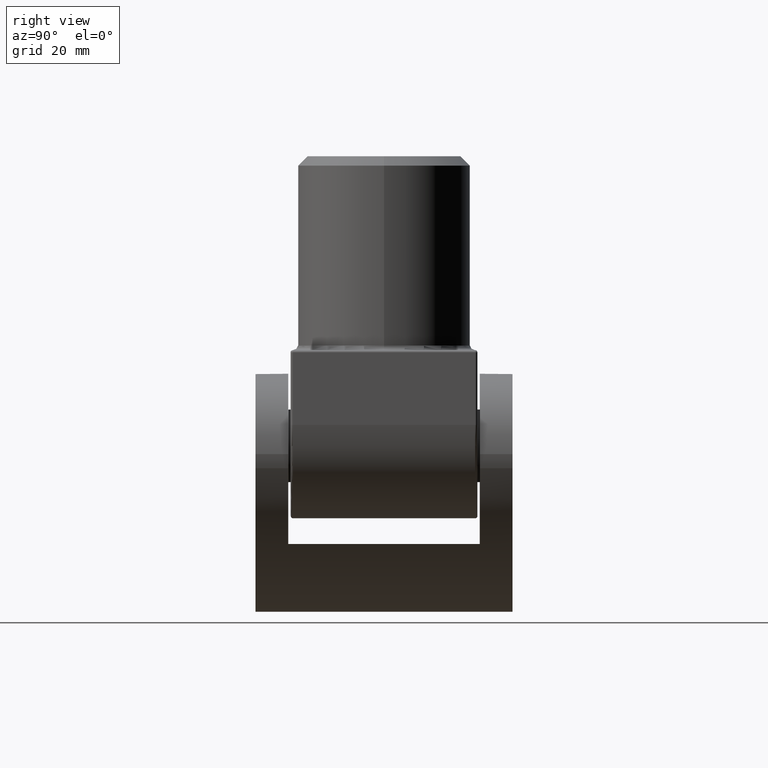
[diagram: clean part render]
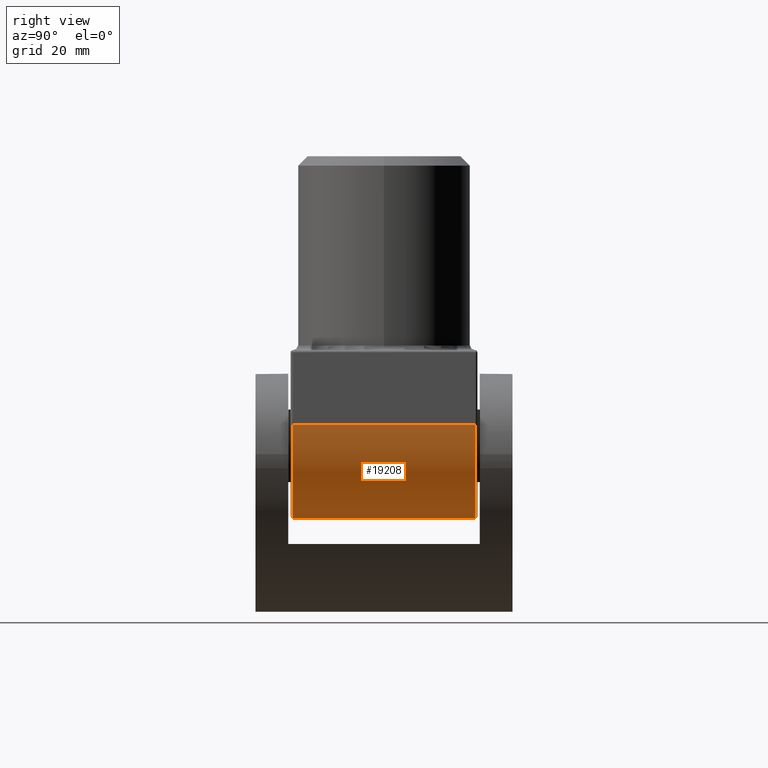
[diagram: same view with one face highlighted and labeled with its STEP entity id]
A machine part, right view. The second image highlights one B-rep face of the part: STEP entity #19208.
In plain terms, the highlighted cylindrical surface (partial cylindrical patch) has radius 20 mm, axis along (-0, -1, -0).
Its self-contained STEP definition (entity closure, byte-faithful):
#356 = DIRECTION ( 'NONE',  ( 0.000000000000000000, 0.000000000000000000, -1.000000000000000000 ) ) ;
#416 = CIRCLE ( 'NONE', #4299, 20.00000000000000355 ) ;
#1818 = ORIENTED_EDGE ( 'NONE', *, *, #15440, .F. ) ;
#2040 = CIRCLE ( 'NONE', #4045, 20.00000000000000355 ) ;
#3154 = ORIENTED_EDGE ( 'NONE', *, *, #17713, .T. ) ;
#3728 = DIRECTION ( 'NONE',  ( -0.000000000000000000, -1.000000000000000000, -0.000000000000000000 ) ) ;
#4045 = AXIS2_PLACEMENT_3D ( 'NONE', #17751, #9702, #4877 ) ;
#4097 = VERTEX_POINT ( 'NONE', #16473 ) ;
#4185 = LINE ( 'NONE', #5440, #20232 ) ;
#4299 = AXIS2_PLACEMENT_3D ( 'NONE', #7311, #12080, #10440 ) ;
#4877 = DIRECTION ( 'NONE',  ( 0.000000000000000000, 0.000000000000000000, 1.000000000000000000 ) ) ;
#5440 = CARTESIAN_POINT ( 'NONE',  ( 0.000000000000000000, 20.00000000000000000, -36.00000000000000000 ) ) ;
#5550 = VERTEX_POINT ( 'NONE', #10779 ) ;
#7311 = CARTESIAN_POINT ( 'NONE',  ( 0.000000000000000000, 19.50000000000000000, -15.99999999999999289 ) ) ;
#8425 = VERTEX_POINT ( 'NONE', #15170 ) ;
#8851 = CYLINDRICAL_SURFACE ( 'NONE', #12398, 20.00000000000000355 ) ;
#9097 = FACE_OUTER_BOUND ( 'NONE', #17159, .T. ) ;
#9383 = VECTOR ( 'NONE', #12446, 1000.000000000000000 ) ;
#9702 = DIRECTION ( 'NONE',  ( 0.000000000000000000, 1.000000000000000000, 0.000000000000000000 ) ) ;
#9714 = CARTESIAN_POINT ( 'NONE',  ( 20.00000000000000355, 19.50000000000000000, -15.99999999999998934 ) ) ;
#9952 = DIRECTION ( 'NONE',  ( -0.000000000000000000, -1.000000000000000000, -0.000000000000000000 ) ) ;
#10440 = DIRECTION ( 'NONE',  ( 0.000000000000000000, 0.000000000000000000, 1.000000000000000000 ) ) ;
#10779 = CARTESIAN_POINT ( 'NONE',  ( 20.00000000000000355, -19.50000000000000000, -15.99999999999998934 ) ) ;
#11127 = VERTEX_POINT ( 'NONE', #9714 ) ;
#12080 = DIRECTION ( 'NONE',  ( -0.000000000000000000, -1.000000000000000000, -0.000000000000000000 ) ) ;
#12398 = AXIS2_PLACEMENT_3D ( 'NONE', #13336, #9952, #356 ) ;
#12446 = DIRECTION ( 'NONE',  ( -0.000000000000000000, -1.000000000000000000, -0.000000000000000000 ) ) ;
#13336 = CARTESIAN_POINT ( 'NONE',  ( 0.000000000000000000, 20.00000000000000000, -15.99999999999999289 ) ) ;
#15170 = CARTESIAN_POINT ( 'NONE',  ( 0.000000000000000000, 19.50000000000000000, -36.00000000000000000 ) ) ;
#15440 = EDGE_CURVE ( 'NONE', #8425, #4097, #4185, .T. ) ;
#16027 = ORIENTED_EDGE ( 'NONE', *, *, #16747, .T. ) ;
#16473 = CARTESIAN_POINT ( 'NONE',  ( 0.000000000000000000, -19.50000000000000000, -36.00000000000000000 ) ) ;
#16747 = EDGE_CURVE ( 'NONE', #8425, #11127, #416, .T. ) ;
#17159 = EDGE_LOOP ( 'NONE', ( #1818, #16027, #3154, #18851 ) ) ;
#17256 = CARTESIAN_POINT ( 'NONE',  ( 20.00000000000000355, 20.00000000000000000, -15.99999999999998934 ) ) ;
#17658 = LINE ( 'NONE', #17256, #9383 ) ;
#17713 = EDGE_CURVE ( 'NONE', #11127, #5550, #17658, .T. ) ;
#17751 = CARTESIAN_POINT ( 'NONE',  ( 0.000000000000000000, -19.50000000000000000, -15.99999999999999289 ) ) ;
#18851 = ORIENTED_EDGE ( 'NONE', *, *, #19716, .T. ) ;
#19208 = ADVANCED_FACE ( 'NONE', ( #9097 ), #8851, .T. ) ;
#19716 = EDGE_CURVE ( 'NONE', #5550, #4097, #2040, .T. ) ;
#20232 = VECTOR ( 'NONE', #3728, 1000.000000000000000 ) ;